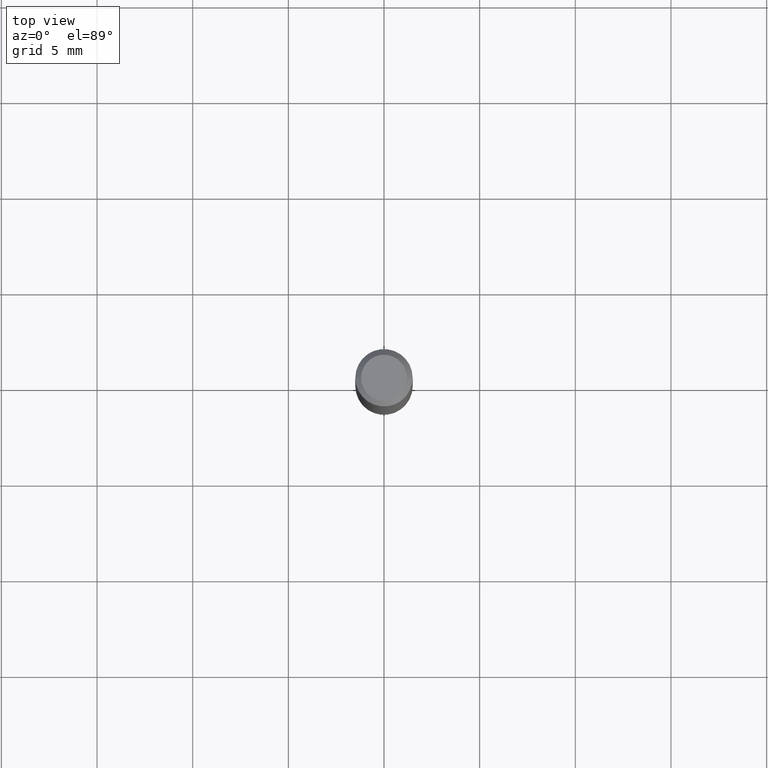
[diagram: clean part render]
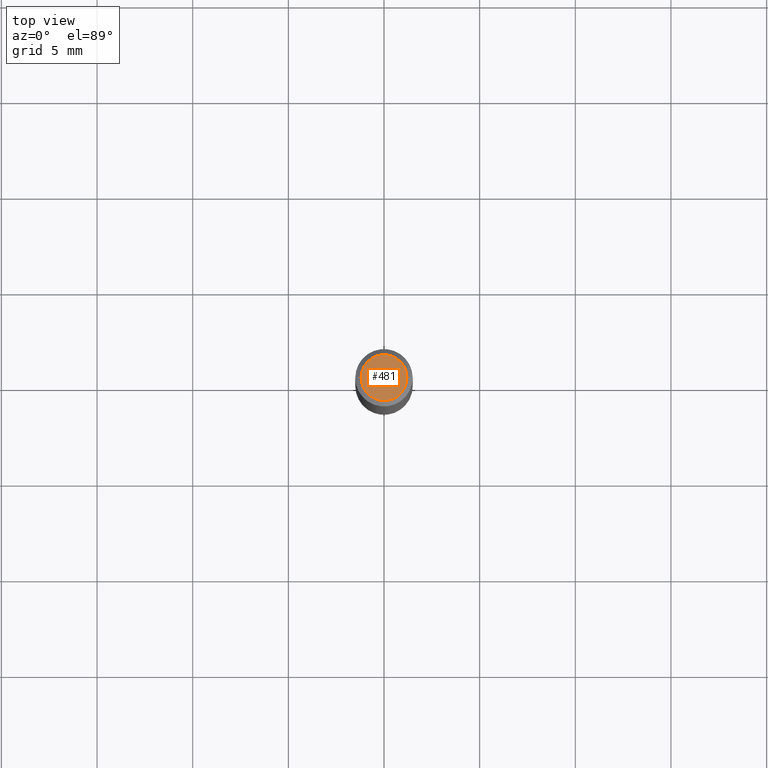
[diagram: same view with one face highlighted and labeled with its STEP entity id]
A machine part, top view. The second image highlights one B-rep face of the part: STEP entity #481.
In plain terms, the highlighted planar face has unit normal (0, -0, -1).
Its self-contained STEP definition (entity closure, byte-faithful):
#21 = DIRECTION ( 'NONE',  ( -1.000000000000000000, 6.982962677686265922E-15, -4.876176775795935793E-29 ) ) ;
#60 = PLANE ( 'NONE',  #67 ) ;
#63 = CARTESIAN_POINT ( 'NONE',  ( 0.04724000000000000421, -3.852183633974369345E-16, -3.380025165621689721E-19 ) ) ;
#65 = ORIENTED_EDGE ( 'NONE', *, *, #69, .T. ) ;
#67 = AXIS2_PLACEMENT_3D ( 'NONE', #92, #103, #21 ) ;
#69 = EDGE_CURVE ( 'NONE', #448, #185, #427, .T. ) ;
#86 = CARTESIAN_POINT ( 'NONE',  ( -0.04724000000000000421, 3.504923541997677355E-16, -3.380025165670481712E-19 ) ) ;
#92 = CARTESIAN_POINT ( 'NONE',  ( 4.132873053354867254E-48, -5.900647395337818946E-34, -1.690012582823346072E-19 ) ) ;
#103 = DIRECTION ( 'NONE',  ( 2.438088387897960049E-29, -3.491481338843145188E-15, -1.000000000000000000 ) ) ;
#111 = DIRECTION ( 'NONE',  ( -2.445468806185136597E-29, 3.491481338843145583E-15, 1.000000000000000000 ) ) ;
#128 = CARTESIAN_POINT ( 'NONE',  ( 8.265746106709734507E-48, -1.180129479067563789E-33, -3.380025165646692144E-19 ) ) ;
#142 = AXIS2_PLACEMENT_3D ( 'NONE', #128, #155, #447 ) ;
#155 = DIRECTION ( 'NONE',  ( -2.445468806185136597E-29, 3.491481338843145583E-15, 1.000000000000000000 ) ) ;
#185 = VERTEX_POINT ( 'NONE', #86 ) ;
#219 = FACE_OUTER_BOUND ( 'NONE', #330, .T. ) ;
#224 = AXIS2_PLACEMENT_3D ( 'NONE', #488, #111, #297 ) ;
#297 = DIRECTION ( 'NONE',  ( 1.000000000000000000, -6.982962677686266711E-15, 4.876185090822587894E-29 ) ) ;
#326 = EDGE_CURVE ( 'NONE', #185, #448, #418, .T. ) ;
#330 = EDGE_LOOP ( 'NONE', ( #332, #65 ) ) ;
#332 = ORIENTED_EDGE ( 'NONE', *, *, #326, .T. ) ;
#418 = CIRCLE ( 'NONE', #142, 0.04724000000000000421 ) ;
#427 = CIRCLE ( 'NONE', #224, 0.04724000000000000421 ) ;
#447 = DIRECTION ( 'NONE',  ( 1.000000000000000000, -6.982962677686266711E-15, 4.876185090822587894E-29 ) ) ;
#448 = VERTEX_POINT ( 'NONE', #63 ) ;
#481 = ADVANCED_FACE ( 'NONE', ( #219 ), #60, .F. ) ;
#488 = CARTESIAN_POINT ( 'NONE',  ( 8.265746106709734507E-48, -1.180129479067563789E-33, -3.380025165646692144E-19 ) ) ;